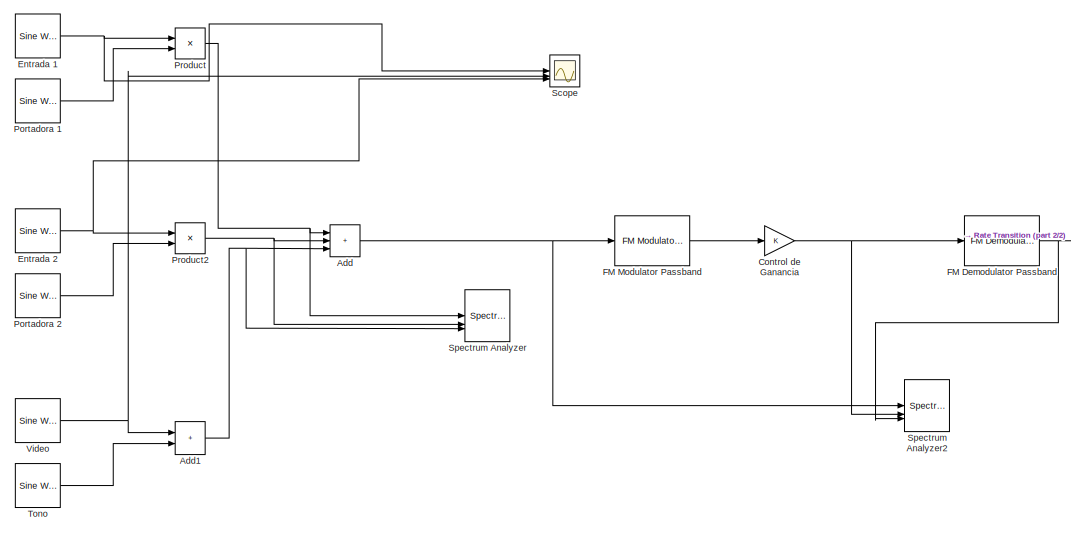
[diagram: root canvas - part 1/2, left side, full height]
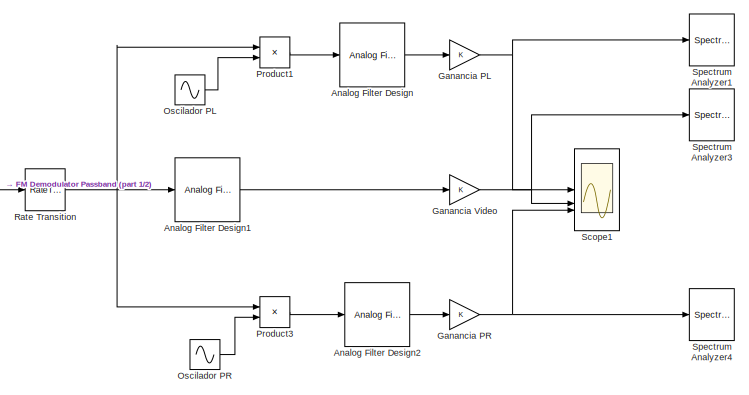
[diagram: root canvas - part 2/2, middle right region]
MODEL slx_adc87ec4c0a0
KIND model
CONFIG AbsTol = auto
CONFIG EnableMultiTasking = off
CONFIG FixedStep = auto
CONFIG MaxStep = auto
CONFIG MinStep = auto
CONFIG RelTol = 1e-3
CONFIG SampleTimeConstraint = Unconstrained
CONFIG SolverName = VariableStepAuto
CONFIG StartTime = 0.0
CONFIG StopTime = 0.005
BLOCK [Sum] Add
  IconShape = rectangular
  Inputs = +++
BLOCK [Sum] Add1
  IconShape = rectangular
BLOCK [Reference] Analog Filter Design  REF=dspfdesign/Analog
Filter Design
  SourceBlock = dspfdesign/Analog\nFilter Design
  SourceType = Analog Filter Design
BLOCK [Reference] Analog Filter Design1  REF=dspfdesign/Analog
Filter Design
  SourceBlock = dspfdesign/Analog\nFilter Design
  SourceType = Analog Filter Design
BLOCK [Reference] Analog Filter Design2  REF=dspfdesign/Analog
Filter Design
  SourceBlock = dspfdesign/Analog\nFilter Design
  SourceType = Analog Filter Design
BLOCK [Gain] Control de Ganancia
BLOCK [Reference] Entrada 1  REF=dspsrcs4/Sine Wave
  SourceBlock = dspsrcs4/Sine Wave
  SourceType = Sine Wave
BLOCK [Reference] Entrada 2  REF=dspsrcs4/Sine Wave
  SourceBlock = dspsrcs4/Sine Wave
  SourceType = Sine Wave
BLOCK [Reference] FM Demodulator Passband  REF=commanapbnd3/FM
Demodulator
Passband
  SourceBlock = commanapbnd3/FM\nDemodulator\nPassband
  SourceType = FM Demodulator Passband
BLOCK [Reference] FM Modulator Passband  REF=commanapbnd3/FM
Modulator
Passband
  SourceBlock = commanapbnd3/FM\nModulator\nPassband
  SourceType = FM Modulator Passband
BLOCK [Gain] Ganancia PL
BLOCK [Gain] Ganancia PR
BLOCK [Gain] Ganancia Video
BLOCK [Sin] Oscilador PL
  Frequency = 2*pi*4.8e6
  SampleTime = Ts
BLOCK [Sin] Oscilador PR
  Frequency = 2*pi*5e6
  SampleTime = Ts
BLOCK [Reference] Portadora 1  REF=dspsrcs4/Sine Wave
  SourceBlock = dspsrcs4/Sine Wave
  SourceType = Sine Wave
BLOCK [Reference] Portadora 2  REF=dspsrcs4/Sine Wave
  SourceBlock = dspsrcs4/Sine Wave
  SourceType = Sine Wave
BLOCK [Product] Product
BLOCK [Product] Product1
BLOCK [Product] Product2
BLOCK [Product] Product3
BLOCK [RateTransition] Rate Transition
BLOCK [Scope] Scope
  Floating = off
  NumInputPorts = 3
  ScopeSpecificationString = Simulink.scopes.TimeScopeBlockCfg('CurrentConfiguration', extmgr.ConfigurationSet(extmgr.Configuration('Core','General UI',true),extmgr.Configuration('Core','Source UI',true),extmgr.Configuration('Sources','WiredSimulink',true),extmgr.Configuration('Visuals','Time Domain',true,'SerializedDisplays',{struct('MinYLimReal','-10.00000','MaxYLimReal','10.00000','YLabelReal','','MinYLimMag','0.00000','Ma...<+3038ch>
BLOCK [Scope] Scope1
  Floating = off
  NumInputPorts = 3
  ScopeSpecificationString = Simulink.scopes.TimeScopeBlockCfg('CurrentConfiguration', extmgr.ConfigurationSet(extmgr.Configuration('Core','General UI',true),extmgr.Configuration('Core','Source UI',true),extmgr.Configuration('Sources','WiredSimulink',true,'DataLoggingVariableName','ScopeData1'),extmgr.Configuration('Visuals','Time Domain',true,'SerializedDisplays',{struct('MinYLimReal','-0.27121','MaxYLimReal','0.25911','YLab...<+3816ch>
BLOCK [SpectrumAnalyzer] Spectrum Analyzer
  GraphicalSettings = {"GraphicalSettings":{"Style":{"BackgroundColor":[0.12941176470588237,0.12941176470588237,0.12941176470588237],"AxesColor":[0.07058823529411765,0.07058823529411765,0.07058823529411765],"LabelsColor":[0.8509803921568627,0.8509803921568627,0.8509803921568627],"PreserveColors":false,"Visible":[true,true,true],"LineStyle":["-","-","-"],"LineWidth":[1.5,1.5,1.5],"BarWidth":[0.9,0.9,0.9],"LineColor":[[1...<+1245ch>
  NumInputPorts = 3
  RBW = 100000
  RBWSource = Property
  ScopeFrameLocation = window
  ShowLegend = on
  Span = 5849645.520984195
  StartFrequency = -2924822.7604920976
  StopFrequency = 2924822.7604920976
  VBW = 1000
  VBWSource = Property
  WasSavedAsWebScope = on
  WindowPosition = [1081.000000,521.000000,960.000000,1043.000000,]
  YLimits = [-127.69085571,40.818986]
BLOCK [SpectrumAnalyzer] Spectrum Analyzer1
  GraphicalSettings = {"GraphicalSettings":{"Style":{"BackgroundColor":[0.12941176470588237,0.12941176470588237,0.12941176470588237],"AxesColor":[0.07058823529411765,0.07058823529411765,0.07058823529411765],"LabelsColor":[0.8509803921568627,0.8509803921568627,0.8509803921568627],"PreserveColors":false,"Visible":[true,true,true,true,true,true,true],"LineStyle":["-","-","-","-","-","-","-"],"LineWidth":[1.5,1.5,1.5,1.5,1...<+1576ch>  <repeated x3 — deduplicated; at blocks: Spectrum Analyzer1, Spectrum Analyzer3, Spectrum Analyzer4>
  RBW = 100000
  RBWSource = Property
  ScopeFrameLocation = window
  ShowLegend = on
  Span = 5849645.520984195
  StartFrequency = -2924822.7604920976
  StopFrequency = 2924822.7604920976
  VBW = 1000
  VBWSource = Property
  WasSavedAsWebScope = on
  WindowPosition = [3001.000000,521.000000,960.000000,1043.000000,]
  YLimits = [-121.1260528,40.19092513]
BLOCK [SpectrumAnalyzer] Spectrum Analyzer2
  GraphicalSettings = {"GraphicalSettings":{"Style":{"BackgroundColor":[0.12941176470588237,0.12941176470588237,0.12941176470588237],"AxesColor":[0.07058823529411765,0.07058823529411765,0.07058823529411765],"LabelsColor":[0.8509803921568627,0.8509803921568627,0.8509803921568627],"PreserveColors":false,"Visible":[true,true,true],"LineStyle":["-","-","-"],"LineWidth":[1.5,1.5,1.5],"BarWidth":[0.9,0.9,0.9],"LineColor":[[1...<+1245ch>
  NumInputPorts = 3
  RBW = 100000
  RBWSource = Property
  ScopeFrameLocation = window
  SelectedToolstripTab = spectrumAnalyzerToolstrip.estimationTab
  ShowLegend = on
  Span = 5849645.520984195
  StartFrequency = -2924822.7604920976
  StopFrequency = 2924822.7604920976
  VBW = 1000
  VBWSource = Property
  WasSavedAsWebScope = on
  WindowPosition = [2041.000000,521.000000,960.000000,1043.000000,]
  YLimits = [-121.1260528,40.19092513]
BLOCK [SpectrumAnalyzer] Spectrum Analyzer3
  RBW = 100000
  RBWSource = Property
  ScopeFrameLocation = window
  ShowLegend = on
  Span = 5849645.520984195
  StartFrequency = -2924822.7604920976
  StopFrequency = 2924822.7604920976
  VBW = 1000
  VBWSource = Property
  WasSavedAsWebScope = on
  WindowPosition = [2041.000000,521.000000,960.000000,1043.000000,]
  YLimits = [-121.1260528,40.19092513]
BLOCK [SpectrumAnalyzer] Spectrum Analyzer4
  RBW = 100000
  RBWSource = Property
  ScopeFrameLocation = window
  ShowLegend = on
  Span = 5849645.520984195
  StartFrequency = -2924822.7604920976
  StopFrequency = 2924822.7604920976
  VBW = 1000
  VBWSource = Property
  WasSavedAsWebScope = on
  WindowPosition = [2041.000000,521.000000,960.000000,1043.000000,]
  YLimits = [-121.1260528,40.19092513]
BLOCK [Reference] Tono  REF=dspsrcs4/Sine Wave
  SourceBlock = dspsrcs4/Sine Wave
  SourceType = Sine Wave
BLOCK [Reference] Video  REF=dspsrcs4/Sine Wave
  SourceBlock = dspsrcs4/Sine Wave
  SourceType = Sine Wave
NET Add1:1 -> Add:3, Spectrum Analyzer:3
NET Add:1 -> FM Modulator Passband:1, Spectrum Analyzer2:1
LINE Analog Filter Design1:1 -> Ganancia Video:1
LINE Analog Filter Design2:1 -> Ganancia PR:1
LINE Analog Filter Design:1 -> Ganancia PL:1
NET Control de Ganancia:1 -> FM Demodulator Passband:1, Spectrum Analyzer2:2
NET Entrada 1:1 -> Product:1, Scope:1
NET Entrada 2:1 -> Product2:1, Scope:3
NET FM Demodulator Passband:1 -> Rate Transition:1, Spectrum Analyzer2:3
LINE FM Modulator Passband:1 -> Control de Ganancia:1
NET Ganancia PL:1 -> Scope1:1, Spectrum Analyzer1:1
NET Ganancia PR:1 -> Scope1:3, Spectrum Analyzer4:1
NET Ganancia Video:1 -> Scope1:2, Spectrum Analyzer3:1
LINE Oscilador PL:1 -> Product1:2
LINE Oscilador PR:1 -> Product3:2
LINE Portadora 1:1 -> Product:2
LINE Portadora 2:1 -> Product2:2
LINE Product1:1 -> Analog Filter Design:1
NET Product2:1 -> Add:2, Spectrum Analyzer:2
LINE Product3:1 -> Analog Filter Design2:1
NET Product:1 -> Add:1, Spectrum Analyzer:1
NET Rate Transition:1 -> Analog Filter Design1:1, Product1:1, Product3:1
LINE Tono:1 -> Add1:2
NET Video:1 -> Add1:1, Scope:2
note: NET lines group one-source signal fan-out (src -> all destinations, sorted); 1:1 wires keep LINE
